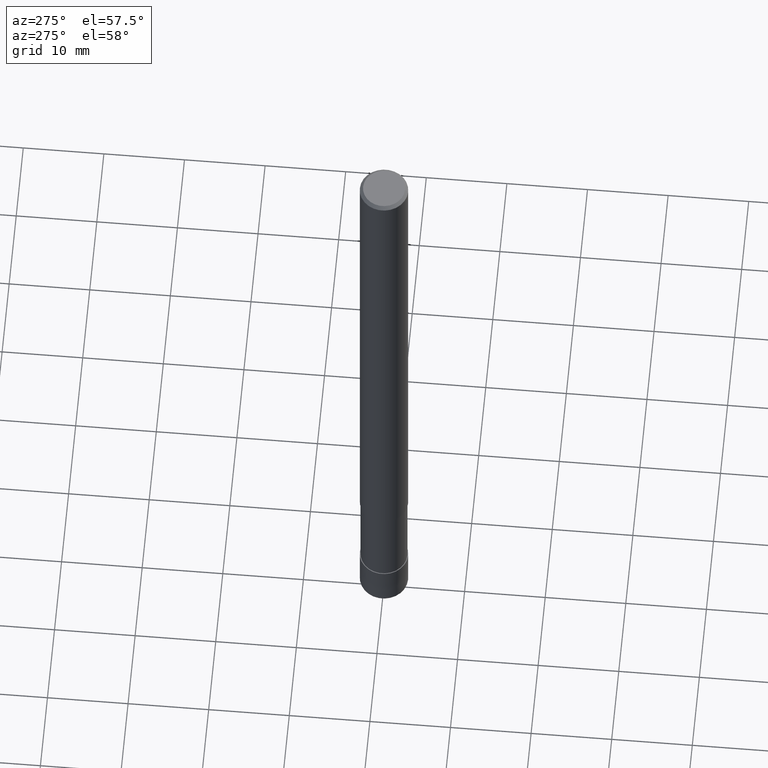
[diagram: clean part render]
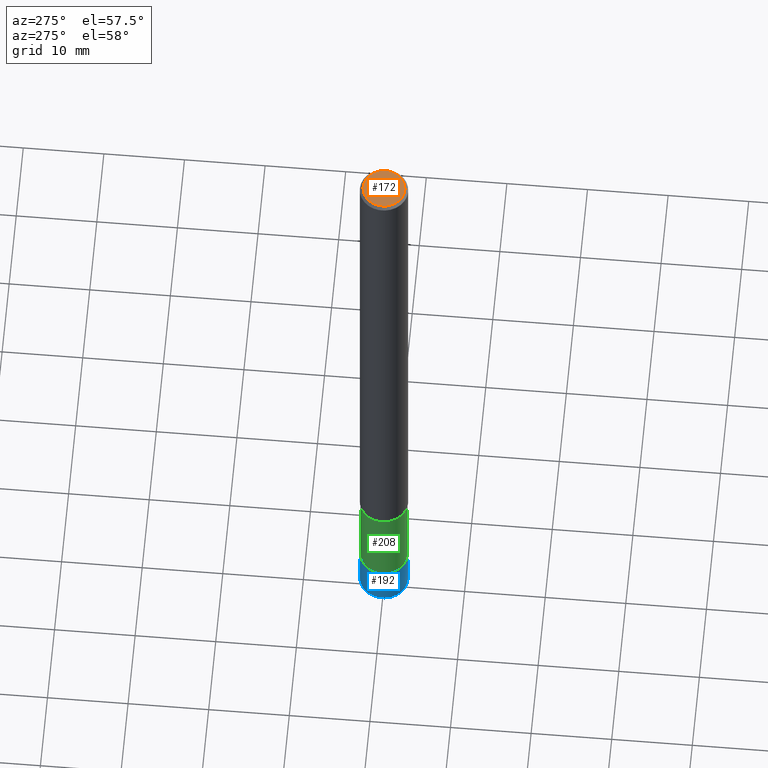
[diagram: same view with three faces highlighted in distinct colors, each labeled with its STEP entity id]
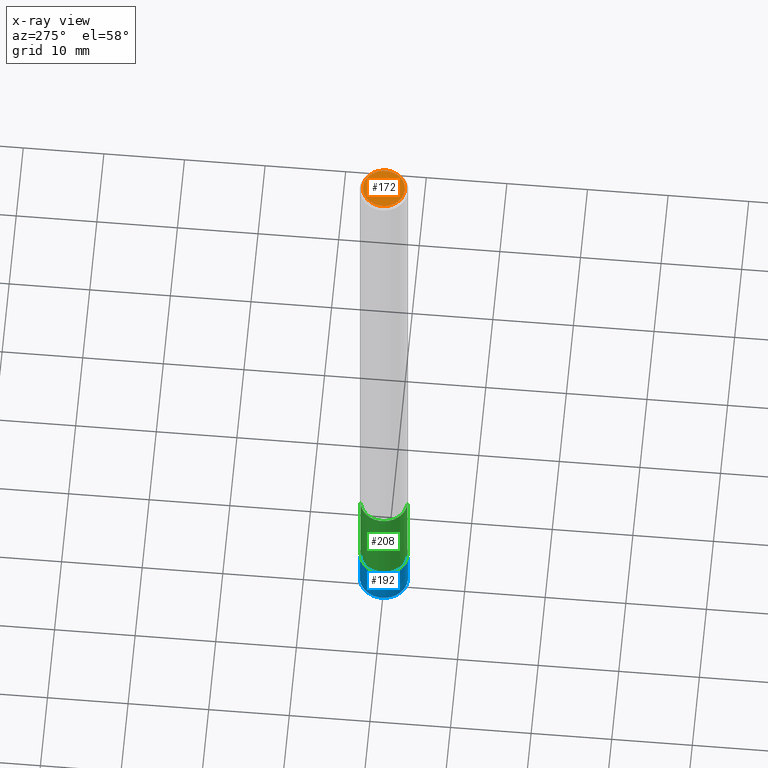
[diagram: x-ray of the same camera — body ghosted, the three highlighted faces saturated]
A machine part, auxiliary view with three faces highlighted in distinct colors.
The next image is the same camera in x-ray (body ghosted, the three faces saturated) — at least one of them is partly hidden behind the body in this view.
Their STEP definitions:

[orange] entity #172 — the highlighted planar face has unit normal (-0, 0, 1).
#94=EDGE_CURVE('',#190,#142,#231,.T.);
#106=EDGE_CURVE('',#142,#190,#243,.T.);
#142=VERTEX_POINT('',#285);
#172=ADVANCED_FACE('',(#319),#320,.T.);
#190=VERTEX_POINT('',#340);
#231=CIRCLE('',#379,2.6);
#243=CIRCLE('',#396,2.6);
#285=CARTESIAN_POINT('',(3.18397651993818E-016,-2.6,0.0));
#319=FACE_OUTER_BOUND('',#488,.T.);
#320=PLANE('',#489);
#340=CARTESIAN_POINT('',(0.0,2.6,0.0));
#379=AXIS2_PLACEMENT_3D('',#541,#542,#543);
#396=AXIS2_PLACEMENT_3D('',#551,#552,#553);
#488=EDGE_LOOP('',(#654,#655));
#489=AXIS2_PLACEMENT_3D('',#656,#657,#658);
#541=CARTESIAN_POINT('',(0.0,0.0,0.0));
#542=DIRECTION('',(0.0,0.0,-1.0));
#543=DIRECTION('',(0.0,1.0,0.0));
#551=CARTESIAN_POINT('',(0.0,0.0,0.0));
#552=DIRECTION('',(0.0,0.0,-1.0));
#553=DIRECTION('',(0.0,1.0,0.0));
#654=ORIENTED_EDGE('',*,*,#94,.F.);
#655=ORIENTED_EDGE('',*,*,#106,.F.);
#656=CARTESIAN_POINT('',(0.0,1.3,0.0));
#657=DIRECTION('',(-0.0,0.0,1.0));
#658=DIRECTION('',(0.0,-1.0,0.0));

[blue] entity #192 — the highlighted conical surface has half-angle 0.001 deg.
#96=VERTEX_POINT('',#233);
#104=VERTEX_POINT('',#241);
#114=VERTEX_POINT('',#251);
#122=EDGE_CURVE('',#114,#96,#262,.T.);
#160=EDGE_CURVE('',#114,#182,#304,.T.);
#162=EDGE_CURVE('',#104,#96,#306,.T.);
#182=VERTEX_POINT('',#331);
#192=ADVANCED_FACE('',(#342),#343,.T.);
#202=EDGE_CURVE('',#182,#104,#354,.T.);
#233=CARTESIAN_POINT('',(0.0,3.0,-89.5));
#241=CARTESIAN_POINT('',(0.0,2.9999,-84.0));
#251=CARTESIAN_POINT('',(3.67381906146713E-016,-3.0,-89.5));
#262=CIRCLE('',#416,3.0);
#304=LINE('',#469,#470);
#306=LINE('',#473,#474);
#331=CARTESIAN_POINT('',(3.67369660083175E-016,-2.9999,-84.0));
#342=FACE_OUTER_BOUND('',#516,.T.);
#343=CONICAL_SURFACE('',#517,2.99995,1.8181818179853E-005);
#354=CIRCLE('',#531,2.9999);
#416=AXIS2_PLACEMENT_3D('',#572,#573,#574);
#469=CARTESIAN_POINT('',(3.67375783114944E-016,-2.99995,-86.75));
#470=VECTOR('',#626,1.0);
#473=CARTESIAN_POINT('',(-3.67375783114944E-016,2.99995,-86.75));
#474=VECTOR('',#627,1.0);
#516=EDGE_LOOP('',(#684,#685,#686,#687));
#517=AXIS2_PLACEMENT_3D('',#688,#689,#690);
#531=AXIS2_PLACEMENT_3D('',#705,#706,#707);
#572=CARTESIAN_POINT('',(0.0,0.0,-89.5));
#573=DIRECTION('',(0.0,0.0,-1.0));
#574=DIRECTION('',(0.0,1.0,0.0));
#626=DIRECTION('',(-2.22655700658645E-021,1.81818181788513E-005,0.999999999834711));
#627=DIRECTION('',(-2.22655700658645E-021,1.81818181788513E-005,-0.999999999834711));
#684=ORIENTED_EDGE('',*,*,#162,.T.);
#685=ORIENTED_EDGE('',*,*,#122,.F.);
#686=ORIENTED_EDGE('',*,*,#160,.T.);
#687=ORIENTED_EDGE('',*,*,#202,.T.);
#688=CARTESIAN_POINT('',(0.0,0.0,-86.75));
#689=DIRECTION('',(0.0,-0.0,-1.0));
#690=DIRECTION('',(0.0,1.0,0.0));
#705=CARTESIAN_POINT('',(0.0,0.0,-84.0));
#706=DIRECTION('',(0.0,0.0,-1.0));
#707=DIRECTION('',(0.0,1.0,0.0));

[green] entity #208 — the highlighted cylindrical surface (edge-blend (fillet) strip) has radius 2.9099 mm, axis along (-0, -0, 1).
#98=EDGE_CURVE('',#138,#204,#235,.T.);
#118=VERTEX_POINT('',#256);
#132=VERTEX_POINT('',#274);
#134=EDGE_CURVE('',#132,#138,#276,.T.);
#138=VERTEX_POINT('',#280);
#156=EDGE_CURVE('',#204,#118,#299,.T.);
#188=EDGE_CURVE('',#132,#118,#338,.T.);
#204=VERTEX_POINT('',#356);
#208=ADVANCED_FACE('',(#360),#361,.T.);
#235=CIRCLE('',#384,2.90995);
#256=CARTESIAN_POINT('',(0.0,2.90995,-84.0));
#274=CARTESIAN_POINT('',(3.56354325930543E-016,-2.90995,-84.0));
#276=LINE('',#431,#432);
#280=CARTESIAN_POINT('',(3.56354325930543E-016,-2.90995,-72.0));
#299=LINE('',#462,#463);
#338=CIRCLE('',#512,2.90995);
#356=CARTESIAN_POINT('',(0.0,2.90995,-72.0));
#360=FACE_OUTER_BOUND('',#537,.T.);
#361=CYLINDRICAL_SURFACE('',#538,2.90995);
#384=AXIS2_PLACEMENT_3D('',#544,#545,#546);
#431=CARTESIAN_POINT('',(3.56354325930543E-016,-2.90995,-78.0));
#432=VECTOR('',#595,1.0);
#462=CARTESIAN_POINT('',(-3.56354325930543E-016,2.90995,-78.0));
#463=VECTOR('',#617,1.0);
#512=AXIS2_PLACEMENT_3D('',#680,#681,#682);
#537=EDGE_LOOP('',(#709,#710,#711,#712));
#538=AXIS2_PLACEMENT_3D('',#713,#714,#715);
#544=CARTESIAN_POINT('',(0.0,0.0,-72.0));
#545=DIRECTION('',(0.0,0.0,-1.0));
#546=DIRECTION('',(0.0,1.0,0.0));
#595=DIRECTION('',(-0.0,-0.0,1.0));
#617=DIRECTION('',(0.0,0.0,-1.0));
#680=CARTESIAN_POINT('',(0.0,0.0,-84.0));
#681=DIRECTION('',(0.0,0.0,-1.0));
#682=DIRECTION('',(0.0,1.0,0.0));
#709=ORIENTED_EDGE('',*,*,#156,.T.);
#710=ORIENTED_EDGE('',*,*,#188,.F.);
#711=ORIENTED_EDGE('',*,*,#134,.T.);
#712=ORIENTED_EDGE('',*,*,#98,.T.);
#713=CARTESIAN_POINT('',(0.0,0.0,-78.0));
#714=DIRECTION('',(-0.0,-0.0,1.0));
#715=DIRECTION('',(0.0,1.0,0.0));